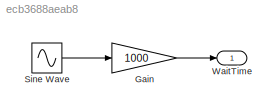
MODEL slx_ecb3688aeab8
KIND model
CONFIG AbsTol = auto
CONFIG EnableMultiTasking = off
CONFIG FixedStep = auto
CONFIG MaxStep = auto
CONFIG MinStep = auto
CONFIG RelTol = 1e-3
CONFIG SampleTimeConstraint = Unconstrained
CONFIG Solver = VariableStepAuto
CONFIG SolverName = VariableStepAuto
CONFIG StartTime = 0.0
CONFIG StopTime = 500
BLOCK [Gain] Gain
  Gain = 1000
BLOCK [Sin] Sine Wave
  Amplitude = 0.2
  Bias = 0.25
  Frequency = 0.1
  Ports = [0, 1]
  SampleTime = 1
BLOCK [Outport] WaitTime
LINE Gain:1 -> WaitTime:1
LINE Sine Wave:1 -> Gain:1
